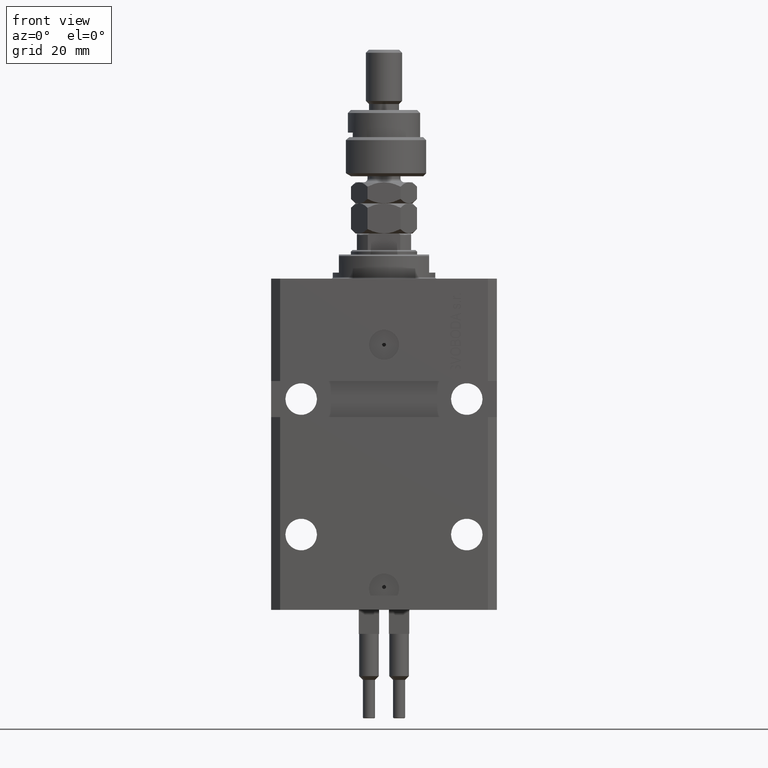
[diagram: clean part render]
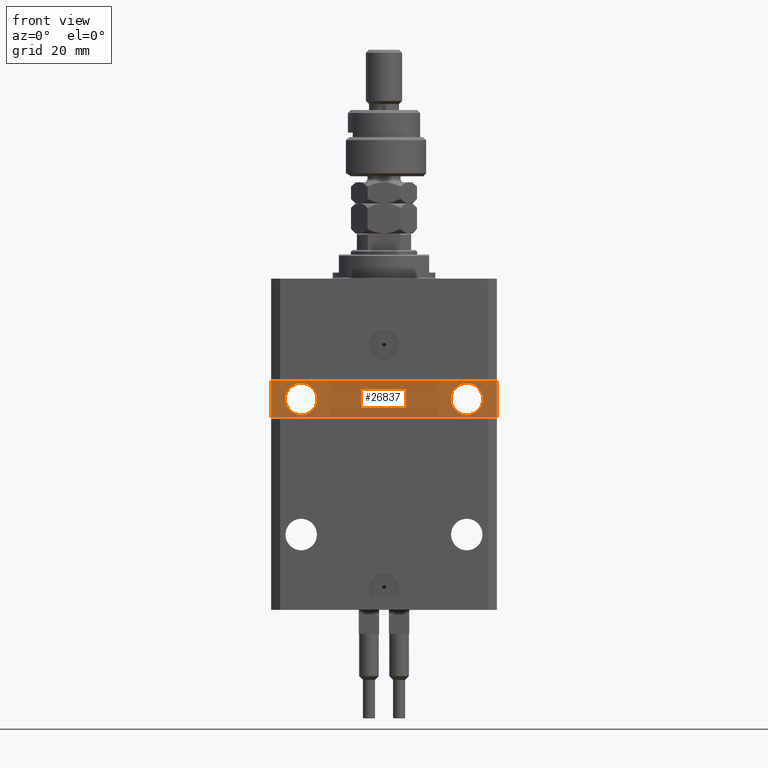
[diagram: same view with one face highlighted and labeled with its STEP entity id]
A machine part, front view. The second image highlights one B-rep face of the part: STEP entity #26837.
In plain terms, the highlighted planar face has unit normal (0, -1, 0).
Its self-contained STEP definition (entity closure, byte-faithful):
#171 = EDGE_LOOP ( 'NONE', ( #44169, #45751 ) ) ;
#363 = EDGE_LOOP ( 'NONE', ( #45519, #6084 ) ) ;
#470 = CARTESIAN_POINT ( 'NONE',  ( 22.25000000000001421, -24.49999999999999289, -40.00000000000000000 ) ) ;
#883 = LINE ( 'NONE', #32325, #46393 ) ;
#1331 = AXIS2_PLACEMENT_3D ( 'NONE', #50367, #30252, #38753 ) ;
#2510 = CARTESIAN_POINT ( 'NONE',  ( 37.49999999999999289, -24.49999999999999289, -33.99999999999997868 ) ) ;
#2740 = CARTESIAN_POINT ( 'NONE',  ( 37.49999999999999289, -24.49999999999999289, -46.00000000000000711 ) ) ;
#3551 = PLANE ( 'NONE',  #6028 ) ;
#6028 = AXIS2_PLACEMENT_3D ( 'NONE', #34995, #50718, #42979 ) ;
#6084 = ORIENTED_EDGE ( 'NONE', *, *, #8039, .F. ) ;
#6173 = CARTESIAN_POINT ( 'NONE',  ( -22.24999999999999645, -24.50000000000000000, -40.00000000000000711 ) ) ;
#6588 = VECTOR ( 'NONE', #38045, 1000.000000000000000 ) ;
#7398 = VECTOR ( 'NONE', #12419, 1000.000000000000000 ) ;
#8039 = EDGE_CURVE ( 'NONE', #9679, #42931, #27668, .T. ) ;
#8064 = CARTESIAN_POINT ( 'NONE',  ( -32.74999999999999289, -24.50000000000000000, -40.00000000000000711 ) ) ;
#8542 = DIRECTION ( 'NONE',  ( 1.171720209325604191E-16, -1.000000000000000000, 0.000000000000000000 ) ) ;
#9679 = VERTEX_POINT ( 'NONE', #470 ) ;
#10871 = EDGE_LOOP ( 'NONE', ( #34338, #22795, #26396, #31794 ) ) ;
#12419 = DIRECTION ( 'NONE',  ( 0.000000000000000000, 0.000000000000000000, -1.000000000000000000 ) ) ;
#13769 = AXIS2_PLACEMENT_3D ( 'NONE', #21845, #32950, #48674 ) ;
#15500 = EDGE_CURVE ( 'NONE', #36224, #24732, #22574, .T. ) ;
#15809 = EDGE_CURVE ( 'NONE', #36594, #36255, #44629, .T. ) ;
#15813 = EDGE_CURVE ( 'NONE', #42931, #9679, #43609, .T. ) ;
#17399 = VERTEX_POINT ( 'NONE', #8064 ) ;
#17934 = CARTESIAN_POINT ( 'NONE',  ( 32.75000000000000000, -24.49999999999999289, -40.00000000000000000 ) ) ;
#18223 = LINE ( 'NONE', #2510, #34268 ) ;
#19255 = FACE_BOUND ( 'NONE', #363, .T. ) ;
#19557 = CARTESIAN_POINT ( 'NONE',  ( -27.49999999999999289, -24.50000000000000000, -40.00000000000000711 ) ) ;
#21845 = CARTESIAN_POINT ( 'NONE',  ( -27.49999999999999289, -24.50000000000000000, -40.00000000000000711 ) ) ;
#22255 = CARTESIAN_POINT ( 'NONE',  ( 37.49999999999999289, -24.49999999999999289, -33.99999999999997868 ) ) ;
#22574 = LINE ( 'NONE', #2740, #6588 ) ;
#22795 = ORIENTED_EDGE ( 'NONE', *, *, #15500, .T. ) ;
#23128 = FACE_BOUND ( 'NONE', #171, .T. ) ;
#23533 = CARTESIAN_POINT ( 'NONE',  ( -37.50000000000000000, -24.50000000000000000, -46.00000000000000000 ) ) ;
#24732 = VERTEX_POINT ( 'NONE', #22255 ) ;
#25180 = DIRECTION ( 'NONE',  ( -1.000000000000000000, -9.251858538542972814E-17, -2.775557561562891844E-16 ) ) ;
#26396 = ORIENTED_EDGE ( 'NONE', *, *, #40659, .T. ) ;
#26837 = ADVANCED_FACE ( 'NONE', ( #19255, #23128, #38851 ), #3551, .T. ) ;
#27649 = CARTESIAN_POINT ( 'NONE',  ( 37.49999999999999289, -24.49999999999999289, -46.00000000000000711 ) ) ;
#27668 = CIRCLE ( 'NONE', #1331, 5.249999999999994671 ) ;
#30252 = DIRECTION ( 'NONE',  ( 1.171720209325604191E-16, -1.000000000000000000, 0.000000000000000000 ) ) ;
#30946 = CARTESIAN_POINT ( 'NONE',  ( -37.50000000000000000, -24.50000000000000000, -34.00000000000000000 ) ) ;
#31389 = EDGE_CURVE ( 'NONE', #32933, #17399, #46398, .T. ) ;
#31794 = ORIENTED_EDGE ( 'NONE', *, *, #15809, .T. ) ;
#32258 = CARTESIAN_POINT ( 'NONE',  ( -37.50000000000000000, -24.50000000000000000, -34.00000000000000000 ) ) ;
#32325 = CARTESIAN_POINT ( 'NONE',  ( -37.50000000000000000, -24.50000000000000000, -46.00000000000000000 ) ) ;
#32933 = VERTEX_POINT ( 'NONE', #6173 ) ;
#32950 = DIRECTION ( 'NONE',  ( 1.101411730780568590E-16, -1.000000000000000000, 0.000000000000000000 ) ) ;
#34268 = VECTOR ( 'NONE', #25180, 1000.000000000000000 ) ;
#34338 = ORIENTED_EDGE ( 'NONE', *, *, #35213, .T. ) ;
#34995 = CARTESIAN_POINT ( 'NONE',  ( 2.191435984341281325E-15, -24.49999999999999645, 0.000000000000000000 ) ) ;
#35213 = EDGE_CURVE ( 'NONE', #36255, #36224, #883, .T. ) ;
#35302 = DIRECTION ( 'NONE',  ( 1.101411730780568590E-16, -1.000000000000000000, 0.000000000000000000 ) ) ;
#35886 = DIRECTION ( 'NONE',  ( 1.000000000000000000, 0.000000000000000000, 0.000000000000000000 ) ) ;
#35991 = CIRCLE ( 'NONE', #13769, 5.249999999999997335 ) ;
#36215 = AXIS2_PLACEMENT_3D ( 'NONE', #43871, #8542, #35886 ) ;
#36224 = VERTEX_POINT ( 'NONE', #27649 ) ;
#36255 = VERTEX_POINT ( 'NONE', #23533 ) ;
#36594 = VERTEX_POINT ( 'NONE', #30946 ) ;
#38045 = DIRECTION ( 'NONE',  ( 0.000000000000000000, 0.000000000000000000, 1.000000000000000000 ) ) ;
#38753 = DIRECTION ( 'NONE',  ( 1.000000000000000000, 0.000000000000000000, 0.000000000000000000 ) ) ;
#38851 = FACE_OUTER_BOUND ( 'NONE', #10871, .T. ) ;
#40659 = EDGE_CURVE ( 'NONE', #24732, #36594, #18223, .T. ) ;
#42288 = AXIS2_PLACEMENT_3D ( 'NONE', #19557, #35302, #51022 ) ;
#42522 = EDGE_CURVE ( 'NONE', #17399, #32933, #35991, .T. ) ;
#42931 = VERTEX_POINT ( 'NONE', #17934 ) ;
#42979 = DIRECTION ( 'NONE',  ( 1.000000000000000000, 9.251858538542974046E-17, 0.000000000000000000 ) ) ;
#43609 = CIRCLE ( 'NONE', #36215, 5.249999999999994671 ) ;
#43871 = CARTESIAN_POINT ( 'NONE',  ( 27.50000000000000711, -24.49999999999999289, -40.00000000000000000 ) ) ;
#44169 = ORIENTED_EDGE ( 'NONE', *, *, #31389, .F. ) ;
#44629 = LINE ( 'NONE', #32258, #7398 ) ;
#45519 = ORIENTED_EDGE ( 'NONE', *, *, #15813, .F. ) ;
#45751 = ORIENTED_EDGE ( 'NONE', *, *, #42522, .F. ) ;
#46393 = VECTOR ( 'NONE', #48049, 1000.000000000000000 ) ;
#46398 = CIRCLE ( 'NONE', #42288, 5.249999999999997335 ) ;
#48049 = DIRECTION ( 'NONE',  ( 1.000000000000000000, 9.251858538542972814E-17, -9.251858538542972814E-17 ) ) ;
#48674 = DIRECTION ( 'NONE',  ( 1.000000000000000000, 0.000000000000000000, 0.000000000000000000 ) ) ;
#50367 = CARTESIAN_POINT ( 'NONE',  ( 27.50000000000000711, -24.49999999999999289, -40.00000000000000000 ) ) ;
#50718 = DIRECTION ( 'NONE',  ( 9.251858538542974046E-17, -1.000000000000000000, 0.000000000000000000 ) ) ;
#51022 = DIRECTION ( 'NONE',  ( 1.000000000000000000, 0.000000000000000000, 0.000000000000000000 ) ) ;